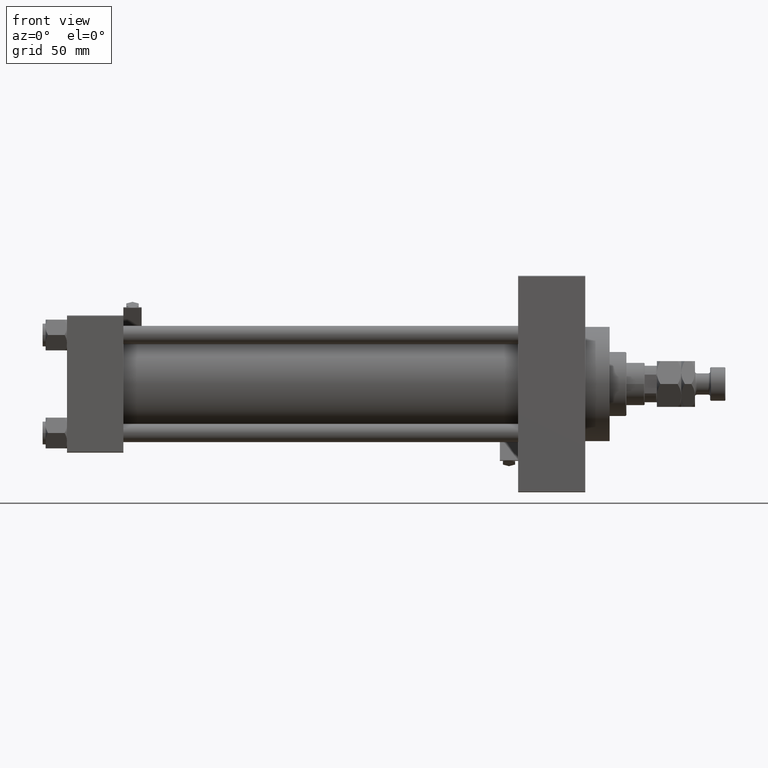
[diagram: clean part render]
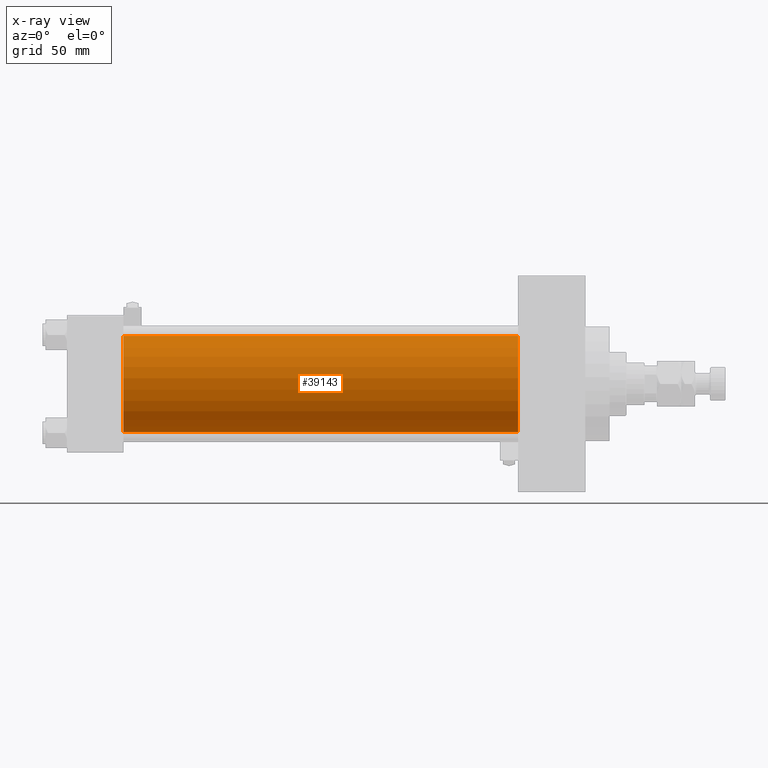
[diagram: x-ray — body ghosted, one internal face saturated and labeled with its STEP entity id]
A machine part, front view, then the same camera in x-ray: the body is ghosted and one INTERNAL B-rep face — a face not visible from any outside direction — is saturated and labeled: STEP entity #39143.
In plain terms, the highlighted cylindrical surface (partial cylindrical patch) has radius 31.5 mm, axis along (-1, -0, -0).
Its self-contained STEP definition (entity closure, byte-faithful):
#1777 = VECTOR ( 'NONE', #3035, 1000.000000000000000 ) ;
#2679 = EDGE_CURVE ( 'NONE', #27822, #39695, #34476, .T. ) ;
#3035 = DIRECTION ( 'NONE',  ( -1.000000000000000000, -0.000000000000000000, -0.000000000000000000 ) ) ;
#3373 = CARTESIAN_POINT ( 'NONE',  ( 296.0000000000000000, 1.255552203348951850E-15, -31.50000000000000000 ) ) ;
#5939 = ORIENTED_EDGE ( 'NONE', *, *, #2679, .T. ) ;
#8601 = DIRECTION ( 'NONE',  ( 1.000000000000000000, 0.000000000000000000, 0.000000000000000000 ) ) ;
#9861 = AXIS2_PLACEMENT_3D ( 'NONE', #38840, #15685, #26770 ) ;
#11221 = CYLINDRICAL_SURFACE ( 'NONE', #32360, 31.50000000000000000 ) ;
#11480 = CARTESIAN_POINT ( 'NONE',  ( 296.0000000000000000, -2.602085213965210642E-15, 0.000000000000000000 ) ) ;
#15685 = DIRECTION ( 'NONE',  ( 1.000000000000000000, 0.000000000000000000, 0.000000000000000000 ) ) ;
#17261 = CARTESIAN_POINT ( 'NONE',  ( 296.0000000000000000, 1.255552203348951850E-15, -31.50000000000000000 ) ) ;
#18293 = CIRCLE ( 'NONE', #9861, 31.50000000000000000 ) ;
#19119 = LINE ( 'NONE', #51431, #1777 ) ;
#20507 = ORIENTED_EDGE ( 'NONE', *, *, #44369, .F. ) ;
#23849 = DIRECTION ( 'NONE',  ( 0.000000000000000000, 0.000000000000000000, 1.000000000000000000 ) ) ;
#24497 = EDGE_LOOP ( 'NONE', ( #5939, #27341, #20507, #33577 ) ) ;
#26770 = DIRECTION ( 'NONE',  ( 0.000000000000000000, 0.000000000000000000, -1.000000000000000000 ) ) ;
#27201 = EDGE_CURVE ( 'NONE', #39695, #28077, #46164, .T. ) ;
#27341 = ORIENTED_EDGE ( 'NONE', *, *, #27201, .T. ) ;
#27813 = AXIS2_PLACEMENT_3D ( 'NONE', #41203, #8601, #36750 ) ;
#27822 = VERTEX_POINT ( 'NONE', #47660 ) ;
#28077 = VERTEX_POINT ( 'NONE', #46769 ) ;
#28313 = EDGE_CURVE ( 'NONE', #27822, #30390, #19119, .T. ) ;
#30390 = VERTEX_POINT ( 'NONE', #40723 ) ;
#32360 = AXIS2_PLACEMENT_3D ( 'NONE', #11480, #35170, #23849 ) ;
#33577 = ORIENTED_EDGE ( 'NONE', *, *, #28313, .F. ) ;
#34476 = CIRCLE ( 'NONE', #27813, 31.50000000000000000 ) ;
#35170 = DIRECTION ( 'NONE',  ( -1.000000000000000000, -0.000000000000000000, -0.000000000000000000 ) ) ;
#36750 = DIRECTION ( 'NONE',  ( 0.000000000000000000, 0.000000000000000000, -1.000000000000000000 ) ) ;
#37878 = VECTOR ( 'NONE', #49330, 1000.000000000000000 ) ;
#38840 = CARTESIAN_POINT ( 'NONE',  ( 37.00000000000000000, -2.602085213965210642E-15, 0.000000000000000000 ) ) ;
#39143 = ADVANCED_FACE ( 'NONE', ( #51965 ), #11221, .F. ) ;
#39695 = VERTEX_POINT ( 'NONE', #3373 ) ;
#40723 = CARTESIAN_POINT ( 'NONE',  ( 37.00000000000000000, -2.602085213965210642E-15, 31.50000000000000000 ) ) ;
#41203 = CARTESIAN_POINT ( 'NONE',  ( 296.0000000000000000, -2.602085213965210642E-15, 0.000000000000000000 ) ) ;
#44369 = EDGE_CURVE ( 'NONE', #30390, #28077, #18293, .T. ) ;
#46164 = LINE ( 'NONE', #17261, #37878 ) ;
#46769 = CARTESIAN_POINT ( 'NONE',  ( 37.00000000000000000, 1.255552203348951850E-15, -31.50000000000000000 ) ) ;
#47660 = CARTESIAN_POINT ( 'NONE',  ( 296.0000000000000000, -2.602085213965210642E-15, 31.50000000000000000 ) ) ;
#49330 = DIRECTION ( 'NONE',  ( -1.000000000000000000, -0.000000000000000000, -0.000000000000000000 ) ) ;
#51431 = CARTESIAN_POINT ( 'NONE',  ( 296.0000000000000000, -2.602085213965210642E-15, 31.50000000000000000 ) ) ;
#51965 = FACE_OUTER_BOUND ( 'NONE', #24497, .T. ) ;